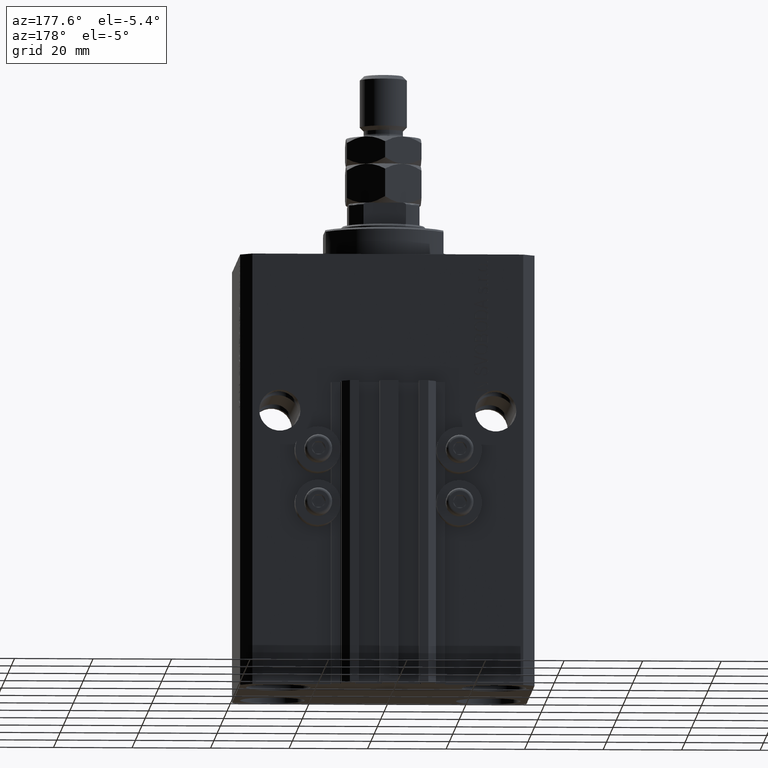
[diagram: clean part render]
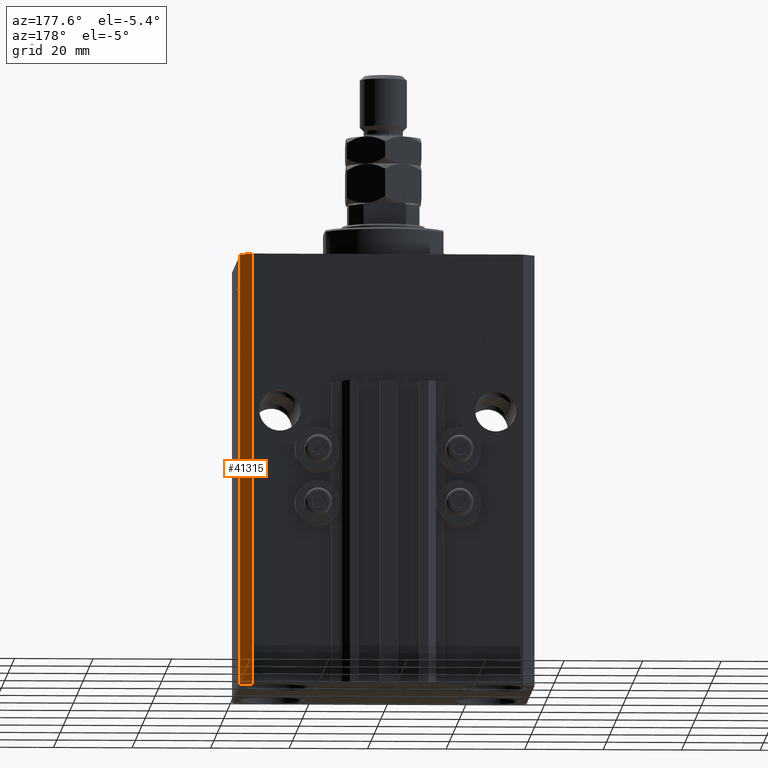
[diagram: same view with one face highlighted and labeled with its STEP entity id]
A machine part, auxiliary view. The second image highlights one B-rep face of the part: STEP entity #41315.
In plain terms, the highlighted planar face has unit normal (0.7071, 0.7071, 0).
Its self-contained STEP definition (entity closure, byte-faithful):
#1574 = DIRECTION ( 'NONE',  ( 0.000000000000000000, 0.000000000000000000, 1.000000000000000000 ) ) ;
#1881 = VERTEX_POINT ( 'NONE', #41891 ) ;
#2109 = CARTESIAN_POINT ( 'NONE',  ( 34.50000000000056843, 27.50000000000000000, -110.0000000000000000 ) ) ;
#3280 = DIRECTION ( 'NONE',  ( 0.7071067811865594521, 0.7071067811865356934, -0.000000000000000000 ) ) ;
#4448 = EDGE_CURVE ( 'NONE', #9279, #39827, #28280, .T. ) ;
#5733 = CARTESIAN_POINT ( 'NONE',  ( 37.50000000000051870, 24.49999999999995381, -110.0000000000000000 ) ) ;
#9279 = VERTEX_POINT ( 'NONE', #33112 ) ;
#10754 = VECTOR ( 'NONE', #13108, 1000.000000000000114 ) ;
#11119 = DIRECTION ( 'NONE',  ( 0.000000000000000000, 0.000000000000000000, 1.000000000000000000 ) ) ;
#13108 = DIRECTION ( 'NONE',  ( -0.7071067811865356934, 0.7071067811865594521, 0.000000000000000000 ) ) ;
#14700 = VECTOR ( 'NONE', #27029, 1000.000000000000114 ) ;
#14786 = PLANE ( 'NONE',  #43267 ) ;
#17492 = VECTOR ( 'NONE', #1574, 1000.000000000000000 ) ;
#18136 = ORIENTED_EDGE ( 'NONE', *, *, #48425, .F. ) ;
#21266 = ORIENTED_EDGE ( 'NONE', *, *, #4448, .T. ) ;
#21692 = CARTESIAN_POINT ( 'NONE',  ( 37.50000000000051870, 24.49999999999995381, 0.000000000000000000 ) ) ;
#24882 = VECTOR ( 'NONE', #11119, 1000.000000000000000 ) ;
#25053 = LINE ( 'NONE', #35815, #17492 ) ;
#25130 = ORIENTED_EDGE ( 'NONE', *, *, #37617, .T. ) ;
#25784 = FACE_OUTER_BOUND ( 'NONE', #26346, .T. ) ;
#26346 = EDGE_LOOP ( 'NONE', ( #18136, #31683, #25130, #21266 ) ) ;
#27029 = DIRECTION ( 'NONE',  ( -0.7071067811865356934, 0.7071067811865594521, 0.000000000000000000 ) ) ;
#28280 = LINE ( 'NONE', #2109, #24882 ) ;
#31683 = ORIENTED_EDGE ( 'NONE', *, *, #41214, .F. ) ;
#31936 = LINE ( 'NONE', #39016, #10754 ) ;
#33112 = CARTESIAN_POINT ( 'NONE',  ( 34.50000000000056843, 27.50000000000000000, -110.0000000000000000 ) ) ;
#35815 = CARTESIAN_POINT ( 'NONE',  ( 37.50000000000051870, 24.49999999999995381, -110.0000000000000000 ) ) ;
#37025 = CARTESIAN_POINT ( 'NONE',  ( 37.50000000000051870, 24.49999999999995381, -110.0000000000000000 ) ) ;
#37617 = EDGE_CURVE ( 'NONE', #1881, #9279, #41950, .T. ) ;
#39016 = CARTESIAN_POINT ( 'NONE',  ( 37.50000000000051870, 24.49999999999995381, 0.000000000000000000 ) ) ;
#39827 = VERTEX_POINT ( 'NONE', #46362 ) ;
#41214 = EDGE_CURVE ( 'NONE', #1881, #46301, #25053, .T. ) ;
#41315 = ADVANCED_FACE ( 'NONE', ( #25784 ), #14786, .T. ) ;
#41891 = CARTESIAN_POINT ( 'NONE',  ( 37.50000000000051870, 24.49999999999995381, -110.0000000000000000 ) ) ;
#41950 = LINE ( 'NONE', #5733, #14700 ) ;
#43267 = AXIS2_PLACEMENT_3D ( 'NONE', #37025, #3280, #43899 ) ;
#43899 = DIRECTION ( 'NONE',  ( -0.7071067811865356934, 0.7071067811865594521, 0.000000000000000000 ) ) ;
#46301 = VERTEX_POINT ( 'NONE', #21692 ) ;
#46362 = CARTESIAN_POINT ( 'NONE',  ( 34.50000000000056843, 27.50000000000000000, 0.000000000000000000 ) ) ;
#48425 = EDGE_CURVE ( 'NONE', #46301, #39827, #31936, .T. ) ;